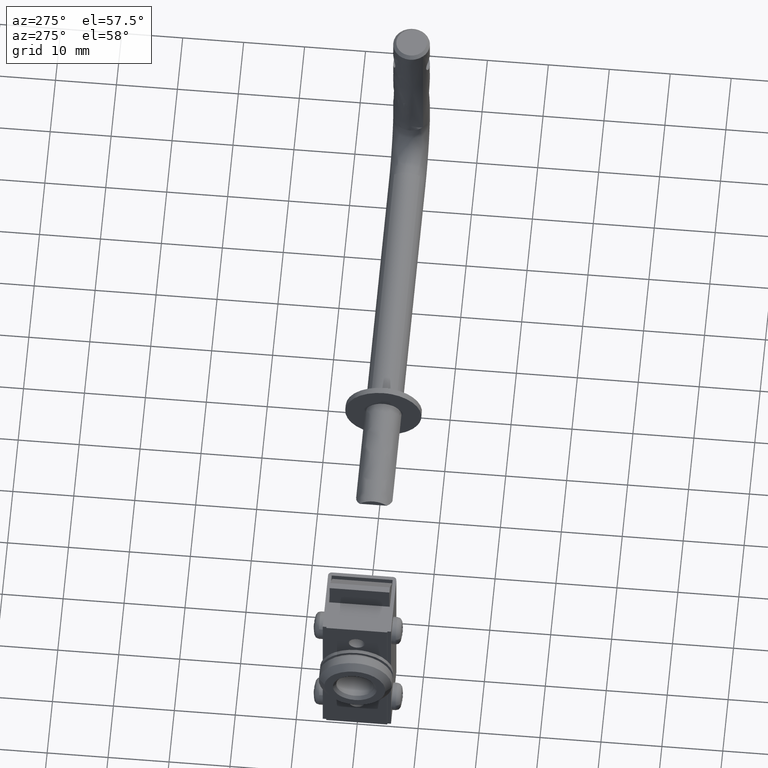
[diagram: clean part render]
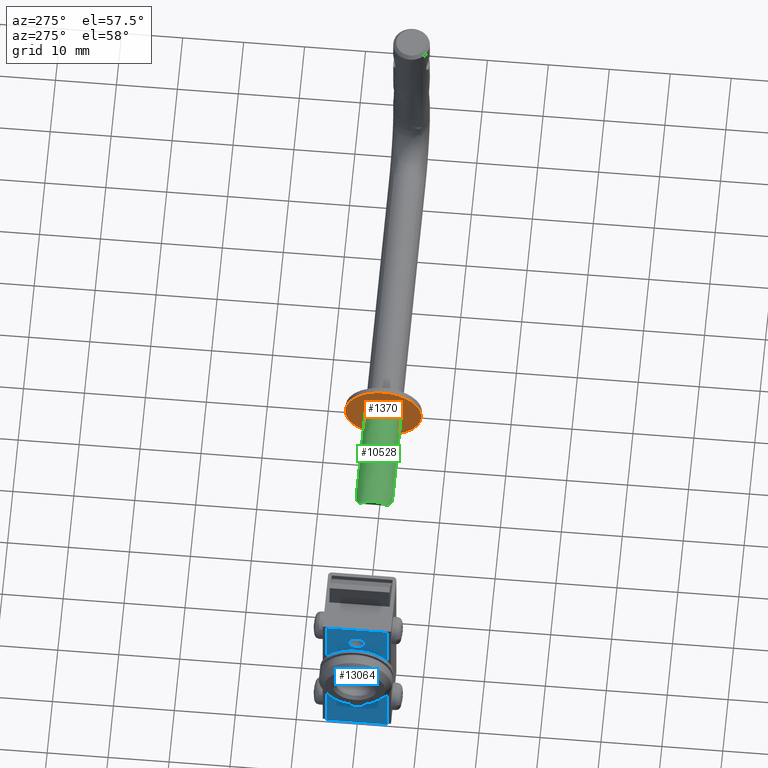
[diagram: same view with three faces highlighted in distinct colors, each labeled with its STEP entity id]
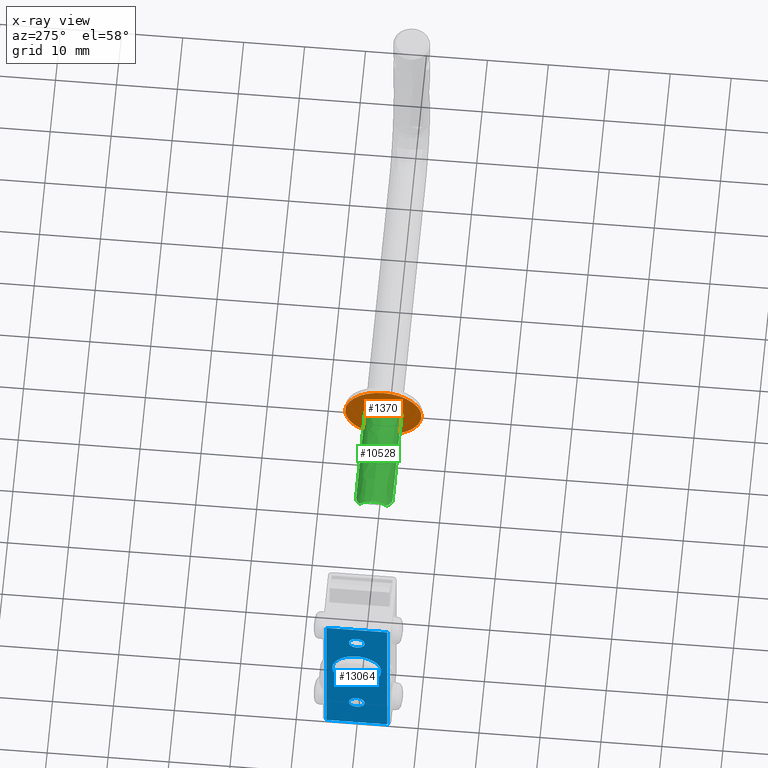
[diagram: x-ray of the same camera — body ghosted, the three highlighted faces saturated]
A machine part, auxiliary view with three faces highlighted in distinct colors.
The next image is the same camera in x-ray (body ghosted, the three faces saturated) — at least one of them is partly hidden behind the body in this view.
Their STEP definitions:

[orange] entity #1370 — the highlighted face is a freeform B-spline surface patch.
#1003=CARTESIAN_POINT('',(18.999969000000000,-2.979028579087426,15.645897295999660));
#1004=VERTEX_POINT('',#1003);
#1005=CARTESIAN_POINT('',(18.999969000000000,0.0,19.0));
#1006=VERTEX_POINT('',#1005);
#1007=CARTESIAN_POINT('',(18.999969000000004,-2.979028579087426,15.645897295999658));
#1008=CARTESIAN_POINT('',(18.999969000000004,-3.000000000000000,15.822327641013894));
#1009=CARTESIAN_POINT('',(18.999969000000000,-3.0,16.0));
#1010=CARTESIAN_POINT('',(18.999969000000004,-3.0,18.999999999999993));
#1011=CARTESIAN_POINT('',(18.999969000000000,0.0,19.0));
#1019=(BOUNDED_CURVE()B_SPLINE_CURVE(2,(#1007,#1008,#1009,#1010,#1011),.UNSPECIFIED.,.F.,.U.)B_SPLINE_CURVE_WITH_KNOTS((3,2,3),(0.229562473512233,0.250000000000000,0.500000000000000),.UNSPECIFIED.)CURVE()GEOMETRIC_REPRESENTATION_ITEM()RATIONAL_B_SPLINE_CURVE((0.956026754181200,0.976055948329651,1.0,0.707106781186548,1.0))REPRESENTATION_ITEM(''));
#1020=EDGE_CURVE('',#1004,#1006,#1019,.T.);
#1022=CARTESIAN_POINT('',(18.999969000000000,2.994404395259582,16.183145618702980));
#1023=VERTEX_POINT('',#1022);
#1024=CARTESIAN_POINT('',(18.999969000000000,0.0,19.0));
#1025=CARTESIAN_POINT('',(18.999969000000007,2.822118200531248,19.000000000000004));
#1026=CARTESIAN_POINT('',(18.999969000000000,2.994404395259582,16.183145618702980));
#1034=(BOUNDED_CURVE()B_SPLINE_CURVE(2,(#1024,#1025,#1026),.UNSPECIFIED.,.F.,.U.)B_SPLINE_CURVE_WITH_KNOTS((3,3),(0.500000000000000,0.739332962230627),.UNSPECIFIED.)CURVE()GEOMETRIC_REPRESENTATION_ITEM()RATIONAL_B_SPLINE_CURVE((1.0,0.719603993296453,0.976072041648896))REPRESENTATION_ITEM(''));
#1035=EDGE_CURVE('',#1006,#1023,#1034,.T.);
#1102=CARTESIAN_POINT('',(18.999969000000000,0.0,13.0));
#1103=VERTEX_POINT('',#1102);
#1104=CARTESIAN_POINT('',(18.999969000000000,0.0,13.0));
#1105=CARTESIAN_POINT('',(18.999968999999997,-2.664523577799946,13.000000000000004));
#1106=CARTESIAN_POINT('',(18.999969000000000,-2.979028579087426,15.645897295999662));
#1114=(BOUNDED_CURVE()B_SPLINE_CURVE(2,(#1104,#1105,#1106),.UNSPECIFIED.,.F.,.U.)B_SPLINE_CURVE_WITH_KNOTS((3,3),(0.0,0.229562473512233),.UNSPECIFIED.)CURVE()GEOMETRIC_REPRESENTATION_ITEM()RATIONAL_B_SPLINE_CURVE((1.0,0.731050832856896,0.956026754181200))REPRESENTATION_ITEM(''));
#1115=EDGE_CURVE('',#1103,#1004,#1114,.T.);
#1149=CARTESIAN_POINT('',(18.999969000000000,2.994404395259582,16.183145618702980));
#1150=CARTESIAN_POINT('',(18.999969000000000,3.0,16.091658289994452));
#1151=CARTESIAN_POINT('',(18.999969000000000,3.0,16.0));
#1152=CARTESIAN_POINT('',(18.999969000000004,3.0,13.000000000000004));
#1153=CARTESIAN_POINT('',(18.999969000000000,0.0,13.0));
#1161=(BOUNDED_CURVE()B_SPLINE_CURVE(2,(#1149,#1150,#1151,#1152,#1153),.UNSPECIFIED.,.F.,.U.)B_SPLINE_CURVE_WITH_KNOTS((3,2,3),(0.739332962230627,0.750000000000000,1.0),.UNSPECIFIED.)CURVE()GEOMETRIC_REPRESENTATION_ITEM()RATIONAL_B_SPLINE_CURVE((0.976072041648896,0.987502787890095,1.0,0.707106781186548,1.0))REPRESENTATION_ITEM(''));
#1162=EDGE_CURVE('',#1023,#1103,#1161,.T.);
#1189=CARTESIAN_POINT('',(18.999969000000000,-6.206309539766547,15.262286033341690));
#1190=VERTEX_POINT('',#1189);
#1191=CARTESIAN_POINT('',(18.999969000000000,0.0,22.250000000000000));
#1192=VERTEX_POINT('',#1191);
#1193=CARTESIAN_POINT('',(18.999968999999997,-6.206309539766547,15.262286033341683));
#1194=CARTESIAN_POINT('',(18.999969000000007,-6.250000000000002,15.629849252121426));
#1195=CARTESIAN_POINT('',(18.999969000000000,-6.250000000000000,16.0));
#1196=CARTESIAN_POINT('',(18.999969000000007,-6.249999999999999,22.250000000000000));
#1197=CARTESIAN_POINT('',(18.999969000000000,0.0,22.250000000000000));
#1205=(BOUNDED_CURVE()B_SPLINE_CURVE(2,(#1193,#1194,#1195,#1196,#1197),.UNSPECIFIED.,.F.,.U.)B_SPLINE_CURVE_WITH_KNOTS((3,2,3),(0.229562473512727,0.250000000000000,0.500000000000000),.UNSPECIFIED.)CURVE()GEOMETRIC_REPRESENTATION_ITEM()RATIONAL_B_SPLINE_CURVE((0.956026754182167,0.976055948330229,1.0,0.707106781186547,1.0))REPRESENTATION_ITEM(''));
#1206=EDGE_CURVE('',#1190,#1192,#1205,.T.);
#1247=CARTESIAN_POINT('',(18.999969000000000,6.238342490128992,16.381553372218359));
#1248=VERTEX_POINT('',#1247);
#1254=CARTESIAN_POINT('',(18.999969000000000,0.0,22.250000000000000));
#1255=CARTESIAN_POINT('',(18.999969000000000,5.879412917923595,22.249999999999993));
#1256=CARTESIAN_POINT('',(18.999968999999997,6.238342490128992,16.381553372218359));
#1264=(BOUNDED_CURVE()B_SPLINE_CURVE(2,(#1254,#1255,#1256),.UNSPECIFIED.,.F.,.U.)B_SPLINE_CURVE_WITH_KNOTS((3,3),(0.500000000000000,0.739332962235026),.UNSPECIFIED.)CURVE()GEOMETRIC_REPRESENTATION_ITEM()RATIONAL_B_SPLINE_CURVE((1.0,0.719603993291299,0.976072041658323))REPRESENTATION_ITEM(''));
#1265=EDGE_CURVE('',#1192,#1248,#1264,.T.);
#1288=CARTESIAN_POINT('',(18.999969000000000,0.0,9.750000000000000));
#1289=VERTEX_POINT('',#1288);
#1290=CARTESIAN_POINT('',(18.999969000000000,0.0,9.750000000000000));
#1291=CARTESIAN_POINT('',(18.999969000000004,-5.551090787099540,9.750000000000000));
#1292=CARTESIAN_POINT('',(18.999969000000004,-6.206309539766547,15.262286033341692));
#1300=(BOUNDED_CURVE()B_SPLINE_CURVE(2,(#1290,#1291,#1292),.UNSPECIFIED.,.F.,.U.)B_SPLINE_CURVE_WITH_KNOTS((3,3),(0.0,0.229562473512727),.UNSPECIFIED.)CURVE()GEOMETRIC_REPRESENTATION_ITEM()RATIONAL_B_SPLINE_CURVE((1.0,0.731050832856318,0.956026754182167))REPRESENTATION_ITEM(''));
#1301=EDGE_CURVE('',#1289,#1190,#1300,.T.);
#1303=CARTESIAN_POINT('',(18.999969000000000,6.238342490128992,16.381553372218363));
#1304=CARTESIAN_POINT('',(18.999969000000004,6.249999999999999,16.190954770742042));
#1305=CARTESIAN_POINT('',(18.999969000000000,6.250000000000000,16.0));
#1306=CARTESIAN_POINT('',(18.999969000000007,6.249999999999999,9.750000000000000));
#1307=CARTESIAN_POINT('',(18.999969000000000,0.0,9.750000000000000));
#1315=(BOUNDED_CURVE()B_SPLINE_CURVE(2,(#1303,#1304,#1305,#1306,#1307),.UNSPECIFIED.,.F.,.U.)B_SPLINE_CURVE_WITH_KNOTS((3,2,3),(0.739332962235026,0.750000000000000,1.0),.UNSPECIFIED.)CURVE()GEOMETRIC_REPRESENTATION_ITEM()RATIONAL_B_SPLINE_CURVE((0.976072041658322,0.987502787895248,1.0,0.707106781186547,1.0))REPRESENTATION_ITEM(''));
#1316=EDGE_CURVE('',#1248,#1289,#1315,.T.);
#1353=CARTESIAN_POINT('',(18.999969000000000,6.874223208351007,22.874374975772579));
#1354=CARTESIAN_POINT('',(18.999969000000000,-6.874261318070761,22.874374975772579));
#1355=CARTESIAN_POINT('',(18.999969000000000,6.874223208351007,9.125624688951298));
#1356=CARTESIAN_POINT('',(18.999969000000000,-6.874261318070761,9.125624688951298));
#1357=B_SPLINE_SURFACE_WITH_KNOTS('',1,1,((#1353,#1355),(#1354,#1356)),.UNSPECIFIED.,.F.,.F.,.U.,(2,2),(2,2),(0.0,13.748484526421770),(0.0,13.748750286821281),.UNSPECIFIED.);
#1358=ORIENTED_EDGE('',*,*,#1301,.T.);
#1359=ORIENTED_EDGE('',*,*,#1206,.T.);
#1360=ORIENTED_EDGE('',*,*,#1265,.T.);
#1361=ORIENTED_EDGE('',*,*,#1316,.T.);
#1362=EDGE_LOOP('',(#1358,#1359,#1360,#1361));
#1363=FACE_OUTER_BOUND('',#1362,.T.);
#1364=ORIENTED_EDGE('',*,*,#1035,.F.);
#1365=ORIENTED_EDGE('',*,*,#1020,.F.);
#1366=ORIENTED_EDGE('',*,*,#1115,.F.);
#1367=ORIENTED_EDGE('',*,*,#1162,.F.);
#1368=EDGE_LOOP('',(#1364,#1365,#1366,#1367));
#1369=FACE_BOUND('',#1368,.T.);
#1370=ADVANCED_FACE('',(#1363,#1369),#1357,.F.);

[blue] entity #13064 — the highlighted face is a freeform B-spline surface patch.
#11818=CARTESIAN_POINT('',(-10.600006000000100,-1.299554522464866,24.034030032928491));
#11819=VERTEX_POINT('',#11818);
#11825=CARTESIAN_POINT('',(-10.600006000000100,0.0,25.300000000000001));
#11826=VERTEX_POINT('',#11825);
#11827=CARTESIAN_POINT('',(-10.600006000000102,-1.299554522464866,24.034030032928495));
#11828=CARTESIAN_POINT('',(-10.600006000000102,-1.266403931948133,25.299999999999990));
#11829=CARTESIAN_POINT('',(-10.600006000000100,0.0,25.300000000000001));
#11837=(BOUNDED_CURVE()B_SPLINE_CURVE(2,(#11827,#11828,#11829),.UNSPECIFIED.,.F.,.U.)B_SPLINE_CURVE_WITH_KNOTS((3,3),(0.254603306693527,0.500000000000000),.UNSPECIFIED.)CURVE()GEOMETRIC_REPRESENTATION_ITEM()RATIONAL_B_SPLINE_CURVE((0.989412390570370,0.712499890445159,1.0))REPRESENTATION_ITEM(''));
#11838=EDGE_CURVE('',#11819,#11826,#11837,.T.);
#11840=CARTESIAN_POINT('',(-10.600006000000100,1.299554522464866,23.965969967071509));
#11841=VERTEX_POINT('',#11840);
#11842=CARTESIAN_POINT('',(-10.600006000000100,0.0,25.300000000000001));
#11843=CARTESIAN_POINT('',(-10.600006000000102,1.300000000000000,25.299999999999994));
#11844=CARTESIAN_POINT('',(-10.600006000000100,1.300000000000000,24.0));
#11845=CARTESIAN_POINT('',(-10.600006000000104,1.300000000000001,23.982982067661389));
#11846=CARTESIAN_POINT('',(-10.600006000000109,1.299554522464866,23.965969967071505));
#11854=(BOUNDED_CURVE()B_SPLINE_CURVE(2,(#11842,#11843,#11844,#11845,#11846),.UNSPECIFIED.,.F.,.U.)B_SPLINE_CURVE_WITH_KNOTS((3,2,3),(0.500000000000000,0.750000000000000,0.754603306693528),.UNSPECIFIED.)CURVE()GEOMETRIC_REPRESENTATION_ITEM()RATIONAL_B_SPLINE_CURVE((1.0,0.707106781186548,1.0,0.994606890741388,0.989412390570369))REPRESENTATION_ITEM(''));
#11855=EDGE_CURVE('',#11826,#11841,#11854,.T.);
#11992=CARTESIAN_POINT('',(-10.600006000000100,0.0,22.699999999999999));
#11993=VERTEX_POINT('',#11992);
#11994=CARTESIAN_POINT('',(-10.600006000000109,1.299554522464866,23.965969967071505));
#11995=CARTESIAN_POINT('',(-10.600006000000105,1.266403931948128,22.700000000000010));
#11996=CARTESIAN_POINT('',(-10.600006000000100,0.0,22.699999999999999));
#12004=(BOUNDED_CURVE()B_SPLINE_CURVE(2,(#11994,#11995,#11996),.UNSPECIFIED.,.F.,.U.)B_SPLINE_CURVE_WITH_KNOTS((3,3),(0.754603306693528,1.0),.UNSPECIFIED.)CURVE()GEOMETRIC_REPRESENTATION_ITEM()RATIONAL_B_SPLINE_CURVE((0.989412390570369,0.712499890445160,1.0))REPRESENTATION_ITEM(''));
#12005=EDGE_CURVE('',#11841,#11993,#12004,.T.);
#12007=CARTESIAN_POINT('',(-10.600006000000100,0.0,22.699999999999999));
#12008=CARTESIAN_POINT('',(-10.600006000000102,-1.300000000000000,22.699999999999999));
#12009=CARTESIAN_POINT('',(-10.600006000000100,-1.300000000000000,24.0));
#12010=CARTESIAN_POINT('',(-10.600006000000105,-1.300000000000000,24.017017932338607));
#12011=CARTESIAN_POINT('',(-10.600006000000104,-1.299554522464866,24.034030032928488));
#12019=(BOUNDED_CURVE()B_SPLINE_CURVE(2,(#12007,#12008,#12009,#12010,#12011),.UNSPECIFIED.,.F.,.U.)B_SPLINE_CURVE_WITH_KNOTS((3,2,3),(0.0,0.250000000000000,0.254603306693528),.UNSPECIFIED.)CURVE()GEOMETRIC_REPRESENTATION_ITEM()RATIONAL_B_SPLINE_CURVE((1.0,0.707106781186548,1.0,0.994606890741389,0.989412390570370))REPRESENTATION_ITEM(''));
#12020=EDGE_CURVE('',#11993,#11819,#12019,.T.);
#12061=CARTESIAN_POINT('',(-10.600006000000100,-0.895712249216251,6.942178097073018));
#12062=VERTEX_POINT('',#12061);
#12068=CARTESIAN_POINT('',(-10.600006000000100,0.0,7.300000000000110));
#12069=VERTEX_POINT('',#12068);
#12070=CARTESIAN_POINT('',(-10.600006000000102,-0.895712249216251,6.942178097073018));
#12071=CARTESIAN_POINT('',(-10.600006000000104,-0.519327915519384,7.300000000000110));
#12072=CARTESIAN_POINT('',(-10.600006000000100,0.0,7.300000000000110));
#12080=(BOUNDED_CURVE()B_SPLINE_CURVE(2,(#12070,#12071,#12072),.UNSPECIFIED.,.F.,.U.)B_SPLINE_CURVE_WITH_KNOTS((3,3),(0.378814196798185,0.500000000000000),.UNSPECIFIED.)CURVE()GEOMETRIC_REPRESENTATION_ITEM()RATIONAL_B_SPLINE_CURVE((0.853689743841946,0.858022000102908,1.0))REPRESENTATION_ITEM(''));
#12081=EDGE_CURVE('',#12062,#12069,#12080,.T.);
#12083=CARTESIAN_POINT('',(-10.600006000000100,1.084051568676422,6.717518080922249));
#12084=VERTEX_POINT('',#12083);
#12085=CARTESIAN_POINT('',(-10.600006000000100,0.0,7.300000000000110));
#12086=CARTESIAN_POINT('',(-10.600006000000102,0.698515196755782,7.300000000000110));
#12087=CARTESIAN_POINT('',(-10.600006000000100,1.084051568676422,6.717518080922249));
#12095=(BOUNDED_CURVE()B_SPLINE_CURVE(2,(#12085,#12086,#12087),.UNSPECIFIED.,.F.,.U.)B_SPLINE_CURVE_WITH_KNOTS((3,3),(0.500000000000000,0.655387315359496),.UNSPECIFIED.)CURVE()GEOMETRIC_REPRESENTATION_ITEM()RATIONAL_B_SPLINE_CURVE((1.0,0.817952436166304,0.862207930027445))REPRESENTATION_ITEM(''));
#12096=EDGE_CURVE('',#12069,#12084,#12095,.T.);
#12176=CARTESIAN_POINT('',(-10.600006000000100,0.0,4.700000000000110));
#12177=VERTEX_POINT('',#12176);
#12178=CARTESIAN_POINT('',(-10.600006000000100,1.084051568676422,6.717518080922249));
#12179=CARTESIAN_POINT('',(-10.600006000000102,1.300000000000000,6.391255590894188));
#12180=CARTESIAN_POINT('',(-10.600006000000100,1.300000000000000,6.000000000000110));
#12181=CARTESIAN_POINT('',(-10.600006000000102,1.300000000000000,4.700000000000111));
#12182=CARTESIAN_POINT('',(-10.600006000000100,0.0,4.700000000000110));
#12190=(BOUNDED_CURVE()B_SPLINE_CURVE(2,(#12178,#12179,#12180,#12181,#12182),.UNSPECIFIED.,.F.,.U.)B_SPLINE_CURVE_WITH_KNOTS((3,2,3),(0.655387315359497,0.750000000000000,1.0),.UNSPECIFIED.)CURVE()GEOMETRIC_REPRESENTATION_ITEM()RATIONAL_B_SPLINE_CURVE((0.862207930027445,0.889154345020244,1.0,0.707106781186548,1.0))REPRESENTATION_ITEM(''));
#12191=EDGE_CURVE('',#12084,#12177,#12190,.T.);
#12193=CARTESIAN_POINT('',(-10.600006000000100,0.0,4.700000000000110));
#12194=CARTESIAN_POINT('',(-10.600006000000102,-1.300000000000000,4.700000000000111));
#12195=CARTESIAN_POINT('',(-10.600006000000100,-1.300000000000000,6.000000000000110));
#12196=CARTESIAN_POINT('',(-10.600006000000102,-1.300000000000000,6.557828910977421));
#12197=CARTESIAN_POINT('',(-10.600006000000102,-0.895712249216251,6.942178097073018));
#12205=(BOUNDED_CURVE()B_SPLINE_CURVE(2,(#12193,#12194,#12195,#12196,#12197),.UNSPECIFIED.,.F.,.U.)B_SPLINE_CURVE_WITH_KNOTS((3,2,3),(0.0,0.250000000000000,0.378814196798185),.UNSPECIFIED.)CURVE()GEOMETRIC_REPRESENTATION_ITEM()RATIONAL_B_SPLINE_CURVE((1.0,0.707106781186548,1.0,0.849084781083640,0.853689743841946))REPRESENTATION_ITEM(''));
#12206=EDGE_CURVE('',#12177,#12062,#12205,.T.);
#12378=CARTESIAN_POINT('',(-10.600006000000100,-3.972038232116101,15.527864126964660));
#12379=VERTEX_POINT('',#12378);
#12385=CARTESIAN_POINT('',(-10.600006000000100,0.0,20.0));
#12386=VERTEX_POINT('',#12385);
#12387=CARTESIAN_POINT('',(-10.600006000000105,-3.972038232116101,15.527864126964658));
#12388=CARTESIAN_POINT('',(-10.600006000000100,-4.000000000000001,15.763104059820842));
#12389=CARTESIAN_POINT('',(-10.600006000000100,-4.0,16.0));
#12390=CARTESIAN_POINT('',(-10.600006000000102,-4.000000000000000,19.999999999999996));
#12391=CARTESIAN_POINT('',(-10.600006000000100,0.0,20.0));
#12399=(BOUNDED_CURVE()B_SPLINE_CURVE(2,(#12387,#12388,#12389,#12390,#12391),.UNSPECIFIED.,.F.,.U.)B_SPLINE_CURVE_WITH_KNOTS((3,2,3),(0.229562518854701,0.250000000000000,0.500000000000000),.UNSPECIFIED.)CURVE()GEOMETRIC_REPRESENTATION_ITEM()RATIONAL_B_SPLINE_CURVE((0.956026843054312,0.976056001451657,1.0,0.707106781186548,1.0))REPRESENTATION_ITEM(''));
#12400=EDGE_CURVE('',#12379,#12386,#12399,.T.);
#12402=CARTESIAN_POINT('',(-10.600006000000100,3.992539193677222,16.244194158306939));
#12403=VERTEX_POINT('',#12402);
#12404=CARTESIAN_POINT('',(-10.600006000000100,0.0,20.0));
#12405=CARTESIAN_POINT('',(-10.600006000000102,3.762824267306449,20.000000000000004));
#12406=CARTESIAN_POINT('',(-10.600006000000105,3.992539193677221,16.244194158306939));
#12414=(BOUNDED_CURVE()B_SPLINE_CURVE(2,(#12404,#12405,#12406),.UNSPECIFIED.,.F.,.U.)B_SPLINE_CURVE_WITH_KNOTS((3,3),(0.500000000000000,0.739332962227490),.UNSPECIFIED.)CURVE()GEOMETRIC_REPRESENTATION_ITEM()RATIONAL_B_SPLINE_CURVE((1.0,0.719603993300128,0.976072041642172))REPRESENTATION_ITEM(''));
#12415=EDGE_CURVE('',#12386,#12403,#12414,.T.);
#12489=CARTESIAN_POINT('',(-10.600006000000100,0.0,12.0));
#12490=VERTEX_POINT('',#12489);
#12491=CARTESIAN_POINT('',(-10.600006000000105,3.992539193677221,16.244194158306936));
#12492=CARTESIAN_POINT('',(-10.600006000000105,4.000000000000001,16.122211053362335));
#12493=CARTESIAN_POINT('',(-10.600006000000100,4.0,16.0));
#12494=CARTESIAN_POINT('',(-10.600006000000102,4.000000000000000,12.0));
#12495=CARTESIAN_POINT('',(-10.600006000000100,0.0,12.0));
#12503=(BOUNDED_CURVE()B_SPLINE_CURVE(2,(#12491,#12492,#12493,#12494,#12495),.UNSPECIFIED.,.F.,.U.)B_SPLINE_CURVE_WITH_KNOTS((3,2,3),(0.739332962227489,0.750000000000000,1.0),.UNSPECIFIED.)CURVE()GEOMETRIC_REPRESENTATION_ITEM()RATIONAL_B_SPLINE_CURVE((0.976072041642171,0.987502787886419,1.0,0.707106781186548,1.0))REPRESENTATION_ITEM(''));
#12504=EDGE_CURVE('',#12403,#12490,#12503,.T.);
#12506=CARTESIAN_POINT('',(-10.600006000000100,0.0,12.0));
#12507=CARTESIAN_POINT('',(-10.600006000000102,-3.552699063609014,12.0));
#12508=CARTESIAN_POINT('',(-10.600006000000105,-3.972038232116101,15.527864126964658));
#12516=(BOUNDED_CURVE()B_SPLINE_CURVE(2,(#12506,#12507,#12508),.UNSPECIFIED.,.F.,.U.)B_SPLINE_CURVE_WITH_KNOTS((3,3),(0.0,0.229562518854701),.UNSPECIFIED.)CURVE()GEOMETRIC_REPRESENTATION_ITEM()RATIONAL_B_SPLINE_CURVE((1.0,0.731050779734891,0.956026843054312))REPRESENTATION_ITEM(''));
#12517=EDGE_CURVE('',#12490,#12379,#12516,.T.);
#12922=CARTESIAN_POINT('',(-10.600006000000119,-5.000000000000091,28.0));
#12923=VERTEX_POINT('',#12922);
#12924=CARTESIAN_POINT('',(-10.600006000000119,5.0,28.0));
#12925=VERTEX_POINT('',#12924);
#12926=CARTESIAN_POINT('',(-10.600006000000119,-5.000000000000091,28.0));
#12927=CARTESIAN_POINT('',(-10.600006000000119,5.0,28.0));
#12928=QUASI_UNIFORM_CURVE('',1,(#12926,#12927),.UNSPECIFIED.,.F.,.U.);
#12929=EDGE_CURVE('',#12923,#12925,#12928,.T.);
#12958=CARTESIAN_POINT('',(-10.600006000000119,-5.000000000000091,0.0));
#12959=VERTEX_POINT('',#12958);
#12960=CARTESIAN_POINT('',(-10.600006000000119,5.0,0.0));
#12961=VERTEX_POINT('',#12960);
#12962=CARTESIAN_POINT('',(-10.600006000000119,-5.000000000000091,0.0));
#12963=CARTESIAN_POINT('',(-10.600006000000119,5.0,0.0));
#12964=QUASI_UNIFORM_CURVE('',1,(#12962,#12963),.UNSPECIFIED.,.F.,.U.);
#12965=EDGE_CURVE('',#12959,#12961,#12964,.T.);
#13027=CARTESIAN_POINT('',(-10.600006000000119,-5.499499980618155,29.398599945730570));
#13028=CARTESIAN_POINT('',(-10.600006000000119,-5.499499980618155,-1.398600696749092));
#13029=CARTESIAN_POINT('',(-10.600006000000119,5.499500248838965,29.398599945730570));
#13030=CARTESIAN_POINT('',(-10.600006000000119,5.499500248838965,-1.398600696749092));
#13031=B_SPLINE_SURFACE_WITH_KNOTS('',1,1,((#13027,#13029),(#13028,#13030)),.UNSPECIFIED.,.F.,.F.,.U.,(2,2),(2,2),(0.0,30.797200642479659),(0.0,10.999000229457121),.UNSPECIFIED.);
#13032=ORIENTED_EDGE('',*,*,#12929,.T.);
#13033=CARTESIAN_POINT('',(-10.600006000000119,5.0,0.0));
#13034=CARTESIAN_POINT('',(-10.600006000000119,5.0,28.0));
#13035=QUASI_UNIFORM_CURVE('',1,(#13033,#13034),.UNSPECIFIED.,.F.,.U.);
#13036=EDGE_CURVE('',#12961,#12925,#13035,.T.);
#13037=ORIENTED_EDGE('',*,*,#13036,.F.);
#13038=ORIENTED_EDGE('',*,*,#12965,.F.);
#13039=CARTESIAN_POINT('',(-10.600006000000119,-5.000000000000091,0.0));
#13040=CARTESIAN_POINT('',(-10.600006000000119,-5.000000000000091,28.0));
#13041=QUASI_UNIFORM_CURVE('',1,(#13039,#13040),.UNSPECIFIED.,.F.,.U.);
#13042=EDGE_CURVE('',#12959,#12923,#13041,.T.);
#13043=ORIENTED_EDGE('',*,*,#13042,.T.);
#13044=EDGE_LOOP('',(#13032,#13037,#13038,#13043));
#13045=FACE_OUTER_BOUND('',#13044,.T.);
#13046=ORIENTED_EDGE('',*,*,#12415,.F.);
#13047=ORIENTED_EDGE('',*,*,#12400,.F.);
#13048=ORIENTED_EDGE('',*,*,#12517,.F.);
#13049=ORIENTED_EDGE('',*,*,#12504,.F.);
#13050=EDGE_LOOP('',(#13046,#13047,#13048,#13049));
#13051=FACE_BOUND('',#13050,.T.);
#13052=ORIENTED_EDGE('',*,*,#12096,.F.);
#13053=ORIENTED_EDGE('',*,*,#12081,.F.);
#13054=ORIENTED_EDGE('',*,*,#12206,.F.);
#13055=ORIENTED_EDGE('',*,*,#12191,.F.);
#13056=EDGE_LOOP('',(#13052,#13053,#13054,#13055));
#13057=FACE_BOUND('',#13056,.T.);
#13058=ORIENTED_EDGE('',*,*,#11855,.F.);
#13059=ORIENTED_EDGE('',*,*,#11838,.F.);
#13060=ORIENTED_EDGE('',*,*,#12020,.F.);
#13061=ORIENTED_EDGE('',*,*,#12005,.F.);
#13062=EDGE_LOOP('',(#13058,#13059,#13060,#13061));
#13063=FACE_BOUND('',#13062,.T.);
#13064=ADVANCED_FACE('',(#13045,#13051,#13057,#13063),#13031,.F.);

[green] entity #10528 — the highlighted face is a freeform B-spline surface patch.
#10417=CARTESIAN_POINT('',(-0.500000000000002,2.999416154968694,16.059183860239344));
#10418=CARTESIAN_POINT('',(-0.500000000000001,2.946713418602658,18.730139053565228));
#10419=CARTESIAN_POINT('',(-0.500000000000001,0.287537257560670,18.986188595101542));
#10420=CARTESIAN_POINT('',(-0.500000000000001,-2.698651337540866,19.273725852662192));
#10421=CARTESIAN_POINT('',(-0.500000000000002,-2.986188595101533,16.287537257560668));
#10422=CARTESIAN_POINT('',(20.512499999999999,2.999416154968694,16.059183860239344));
#10423=CARTESIAN_POINT('',(20.512500000000010,2.946713418602658,18.730139053565217));
#10424=CARTESIAN_POINT('',(20.512499999999999,0.287537257560670,18.986188595101531));
#10425=CARTESIAN_POINT('',(20.512500000000003,-2.698651337540866,19.273725852662192));
#10426=CARTESIAN_POINT('',(20.512499999999999,-2.986188595101533,16.287537257560661));
#10434=(BOUNDED_SURFACE()B_SPLINE_SURFACE(2,1,((#10417,#10422),(#10418,#10423),(#10419,#10424),(#10420,#10425),(#10421,#10426)),.UNSPECIFIED.,.F.,.F.,.U.)B_SPLINE_SURFACE_WITH_KNOTS((3,2,3),(2,2),(0.0,4.572917728598967,9.543480477076107),(0.0,21.012500000000010),.UNSPECIFIED.)GEOMETRIC_REPRESENTATION_ITEM()RATIONAL_B_SPLINE_SURFACE(((0.956886118190660,0.956886118190660),(0.730538238691624,0.730538238691624),(1.0,1.0),(0.707106781186548,0.707106781186548),(1.0,1.0)))REPRESENTATION_ITEM('')SURFACE());
#10435=CARTESIAN_POINT('',(2.328979053388297,2.999416155933322,16.059183811352209));
#10436=VERTEX_POINT('',#10435);
#10437=CARTESIAN_POINT('',(8.881784E-016,2.236077666961100,17.999989166800152));
#10438=VERTEX_POINT('',#10437);
#10439=CARTESIAN_POINT('',(2.328979053388297,2.999416155933322,16.059183811352209));
#10440=CARTESIAN_POINT('',(0.994705948775347,2.977476647482884,17.171071825560283));
#10441=CARTESIAN_POINT('',(2.168404E-015,2.236077666961064,17.999989166800159));
#10449=(BOUNDED_CURVE()B_SPLINE_CURVE(2,(#10439,#10440,#10441),.UNSPECIFIED.,.F.,.U.)B_SPLINE_CURVE_WITH_KNOTS((3,3),(0.845080095926262,1.0),.UNSPECIFIED.)CURVE()GEOMETRIC_REPRESENTATION_ITEM()RATIONAL_B_SPLINE_CURVE((0.860748719797114,0.869917041576999,1.0))REPRESENTATION_ITEM(''));
#10450=EDGE_CURVE('',#10436,#10438,#10449,.T.);
#10451=ORIENTED_EDGE('',*,*,#10450,.T.);
#10452=CARTESIAN_POINT('',(8.881784E-016,-2.236077666961100,17.999989166800152));
#10453=VERTEX_POINT('',#10452);
#10454=CARTESIAN_POINT('',(0.0,2.236077666961083,17.999989166800130));
#10455=CARTESIAN_POINT('',(0.0,1.341649507048102,19.000000000000004));
#10456=CARTESIAN_POINT('',(0.0,2.939055E-015,19.0));
#10457=CARTESIAN_POINT('',(0.0,-1.341649507048098,19.000000000000004));
#10458=CARTESIAN_POINT('',(0.0,-2.236077666961078,17.999989166800130));
#10466=(BOUNDED_CURVE()B_SPLINE_CURVE(2,(#10454,#10455,#10456,#10457,#10458),.UNSPECIFIED.,.F.,.U.)B_SPLINE_CURVE_WITH_KNOTS((3,2,3),(0.0,0.500000000000000,1.0),.UNSPECIFIED.)CURVE()GEOMETRIC_REPRESENTATION_ITEM()RATIONAL_B_SPLINE_CURVE((1.0,0.912869940243418,1.0,0.912869940243418,1.0))REPRESENTATION_ITEM(''));
#10467=EDGE_CURVE('',#10438,#10453,#10466,.T.);
#10468=ORIENTED_EDGE('',*,*,#10467,.T.);
#10469=CARTESIAN_POINT('',(2.054955794951800,-2.986188093361324,16.287542468236651));
#10470=VERTEX_POINT('',#10469);
#10471=CARTESIAN_POINT('',(8.881784E-016,-2.236077666961100,17.999989166800152));
#10472=CARTESIAN_POINT('',(0.879894136156144,-2.891900759557320,17.266751350579757));
#10473=CARTESIAN_POINT('',(2.054955794951801,-2.986188093361324,16.287542468236648));
#10481=(BOUNDED_CURVE()B_SPLINE_CURVE(2,(#10471,#10472,#10473),.UNSPECIFIED.,.F.,.U.)B_SPLINE_CURVE_WITH_KNOTS((3,3),(0.0,0.139127299423253),.UNSPECIFIED.)CURVE()GEOMETRIC_REPRESENTATION_ITEM()RATIONAL_B_SPLINE_CURVE((1.0,0.883177756824809,0.863874492882803))REPRESENTATION_ITEM(''));
#10482=EDGE_CURVE('',#10453,#10470,#10481,.T.);
#10483=ORIENTED_EDGE('',*,*,#10482,.T.);
#10484=CARTESIAN_POINT('',(20.0,-2.986188595095774,16.287537257620489));
#10485=VERTEX_POINT('',#10484);
#10486=CARTESIAN_POINT('',(2.054955794951800,-2.986188093361324,16.287542468236651));
#10487=CARTESIAN_POINT('',(20.0,-2.986188595095774,16.287537257620489));
#10488=QUASI_UNIFORM_CURVE('',1,(#10486,#10487),.UNSPECIFIED.,.F.,.U.);
#10489=EDGE_CURVE('',#10470,#10485,#10488,.T.);
#10490=ORIENTED_EDGE('',*,*,#10489,.T.);
#10491=CARTESIAN_POINT('',(20.0,0.0,19.0));
#10492=VERTEX_POINT('',#10491);
#10493=CARTESIAN_POINT('',(20.000000000000004,-2.986188595095775,16.287537257620485));
#10494=CARTESIAN_POINT('',(20.000000000000007,-2.725008139251085,18.999999999999993));
#10495=CARTESIAN_POINT('',(20.0,0.0,19.0));
#10503=(BOUNDED_CURVE()B_SPLINE_CURVE(2,(#10493,#10494,#10495),.UNSPECIFIED.,.F.,.U.)B_SPLINE_CURVE_WITH_KNOTS((3,3),(0.766651095241384,1.0),.UNSPECIFIED.)CURVE()GEOMETRIC_REPRESENTATION_ITEM()RATIONAL_B_SPLINE_CURVE((0.963582689678895,0.726614752714621,1.0))REPRESENTATION_ITEM(''));
#10504=EDGE_CURVE('',#10485,#10492,#10503,.T.);
#10505=ORIENTED_EDGE('',*,*,#10504,.T.);
#10506=CARTESIAN_POINT('',(20.0,2.999416232615478,16.059179924867191));
#10507=VERTEX_POINT('',#10506);
#10508=CARTESIAN_POINT('',(20.0,0.0,19.0));
#10509=CARTESIAN_POINT('',(20.000000000000004,2.941392438120382,19.000000000000007));
#10510=CARTESIAN_POINT('',(20.000000000000007,2.999416232615478,16.059179924867188));
#10518=(BOUNDED_CURVE()B_SPLINE_CURVE(2,(#10508,#10509,#10510),.UNSPECIFIED.,.F.,.U.)B_SPLINE_CURVE_WITH_KNOTS((3,3),(0.0,0.246526642023661),.UNSPECIFIED.)CURVE()GEOMETRIC_REPRESENTATION_ITEM()RATIONAL_B_SPLINE_CURVE((1.0,0.711176073177672,0.991974488880114))REPRESENTATION_ITEM(''));
#10519=EDGE_CURVE('',#10492,#10507,#10518,.T.);
#10520=ORIENTED_EDGE('',*,*,#10519,.T.);
#10521=CARTESIAN_POINT('',(2.328979053388297,2.999416155933322,16.059183811352209));
#10522=CARTESIAN_POINT('',(20.0,2.999416232615478,16.059179924867191));
#10523=QUASI_UNIFORM_CURVE('',1,(#10521,#10522),.UNSPECIFIED.,.F.,.U.);
#10524=EDGE_CURVE('',#10436,#10507,#10523,.T.);
#10525=ORIENTED_EDGE('',*,*,#10524,.F.);
#10526=EDGE_LOOP('',(#10451,#10468,#10483,#10490,#10505,#10520,#10525));
#10527=FACE_OUTER_BOUND('',#10526,.T.);
#10528=ADVANCED_FACE('',(#10527),#10434,.T.);